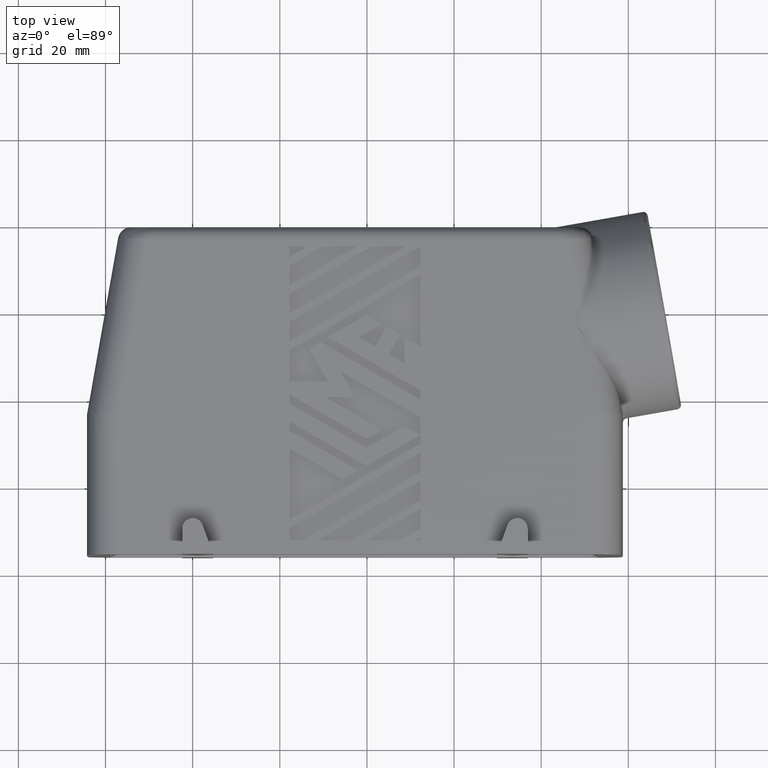
[diagram: clean part render]
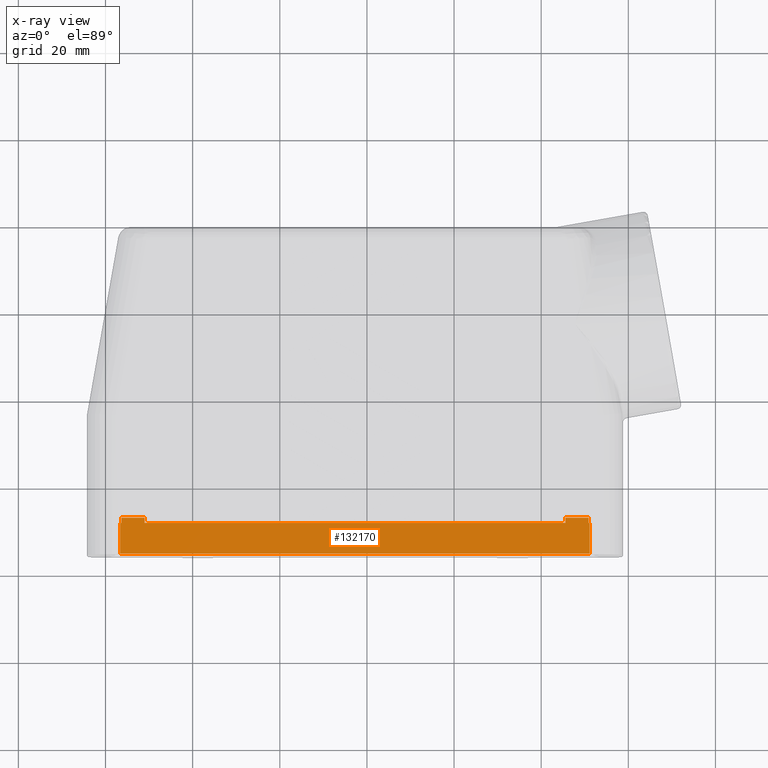
[diagram: x-ray — body ghosted, one internal face saturated and labeled with its STEP entity id]
A machine part, top view, then the same camera in x-ray: the body is ghosted and one INTERNAL B-rep face — a face not visible from any outside direction — is saturated and labeled: STEP entity #132170.
In plain terms, the highlighted planar face has unit normal (0, -0, -1).
Its self-contained STEP definition (entity closure, byte-faithful):
#1080=CARTESIAN_POINT('',(45.5534979824392,31.4003930000063,-17.2));
#1090=VERTEX_POINT('',#1080);
#1120=CARTESIAN_POINT('',(45.5534979824392,53.5003930000063,-17.2));
#1130=DIRECTION('',(6.12536841172502E-16,-1.,-2.87297397578668E-16));
#1140=VECTOR('',#1130,1.);
#1150=LINE('',#1120,#1140);
#1160=CARTESIAN_POINT('',(45.5534979824392,32.6003930000064,-17.2));
#1170=VERTEX_POINT('',#1160);
#1180=EDGE_CURVE('',#1170,#1090,#1150,.T.);
#7230=CARTESIAN_POINT('',(50.8534979824392,32.6003930000064,-17.2));
#7240=VERTEX_POINT('',#7230);
#7270=CARTESIAN_POINT('',(50.8534979824392,-13.5997084564518,-17.2));
#7280=DIRECTION('',(-3.06268420586251E-16,1.,2.87297397578668E-16));
#7290=VECTOR('',#7280,1.);
#7300=LINE('',#7270,#7290);
#7310=CARTESIAN_POINT('',(50.8534979824392,31.4003930000064,-17.2));
#7320=VERTEX_POINT('',#7310);
#7330=EDGE_CURVE('',#7320,#7240,#7300,.T.);
#46660=CARTESIAN_POINT('',(51.1534979824389,24.4003930000064,-17.2));
#46670=VERTEX_POINT('',#46660);
#46700=CARTESIAN_POINT('',(-129.746603478808,24.4003930000063,-17.2));
#46710=DIRECTION('',(-1.,0.,0.));
#46720=VECTOR('',#46710,1.);
#46730=LINE('',#46700,#46720);
#46740=CARTESIAN_POINT('',(-56.6465020175615,24.4003930000063,-17.2));
#46750=VERTEX_POINT('',#46740);
#46760=EDGE_CURVE('',#46670,#46750,#46730,.T.);
#82500=CARTESIAN_POINT('',(-51.0465020175618,31.4003930000063,-17.2));
#82510=VERTEX_POINT('',#82500);
#82540=CARTESIAN_POINT('',(-129.746603478808,31.4003930000063,-17.2));
#82550=DIRECTION('',(-1.,0.,0.));
#82560=VECTOR('',#82550,1.);
#82570=LINE('',#82540,#82560);
#82580=EDGE_CURVE('',#1090,#82510,#82570,.T.);
#100100=CARTESIAN_POINT('',(0.,32.6003930000064,-17.2));
#100110=DIRECTION('',(-1.,6.14770958871954E-45,1.86690458335834E-60));
#100120=VECTOR('',#100110,1.);
#100130=LINE('',#100100,#100120);
#100140=EDGE_CURVE('',#7240,#1170,#100130,.T.);
#102940=CARTESIAN_POINT('',(-56.6465020175615,31.4003930000062,-17.2));
#102950=VERTEX_POINT('',#102940);
#102980=CARTESIAN_POINT('',(-129.746603478808,31.4003930000062,-17.2));
#102990=DIRECTION('',(1.,9.10952225333462E-16,2.617142036568E-31));
#103000=VECTOR('',#102990,1.);
#103010=LINE('',#102980,#103000);
#103020=CARTESIAN_POINT('',(-56.3465020175618,31.4003930000063,-17.2));
#103030=VERTEX_POINT('',#103020);
#103040=EDGE_CURVE('',#102950,#103030,#103010,.T.);
#131620=CARTESIAN_POINT('',(57.2534979824382,31.4003930000063,-17.2));
#131630=DIRECTION('',(0.,-2.87297397578668E-16,1.));
#131640=DIRECTION('',(-1.,0.,0.));
#131650=AXIS2_PLACEMENT_3D('',#131620,#131630,#131640);
#131660=PLANE('',#131650);
#131670=ORIENTED_EDGE('',*,*,#46760,.T.);
#131680=CARTESIAN_POINT('',(51.1534979824389,-13.5997084564518,-17.2));
#131690=DIRECTION('',(2.9841538416096E-16,1.,2.87297397578668E-16));
#131700=VECTOR('',#131690,1.);
#131710=LINE('',#131680,#131700);
#131720=CARTESIAN_POINT('',(51.1534979824389,31.4003930000064,-17.2));
#131730=VERTEX_POINT('',#131720);
#131740=EDGE_CURVE('',#46670,#131730,#131710,.T.);
#131750=ORIENTED_EDGE('',*,*,#131740,.F.);
#131760=CARTESIAN_POINT('',(-129.746603478808,31.4003930000065,-17.2));
#131770=DIRECTION('',(-1.,2.9841538416096E-16,8.57339632668823E-32));
#131780=VECTOR('',#131770,1.);
#131790=LINE('',#131760,#131780);
#131800=EDGE_CURVE('',#131730,#7320,#131790,.T.);
#131810=ORIENTED_EDGE('',*,*,#131800,.F.);
#131820=ORIENTED_EDGE('',*,*,#7330,.F.);
#131830=ORIENTED_EDGE('',*,*,#100140,.F.);
#131840=ORIENTED_EDGE('',*,*,#1180,.F.);
#131850=ORIENTED_EDGE('',*,*,#82580,.F.);
#131860=CARTESIAN_POINT('',(-51.0465020175618,-13.5997084564518,-17.2));
#131870=DIRECTION('',(0.,1.,2.87297397578668E-16));
#131880=VECTOR('',#131870,1.);
#131890=LINE('',#131860,#131880);
#131900=CARTESIAN_POINT('',(-51.0465020175618,32.6003930000065,-17.2));
#131910=VERTEX_POINT('',#131900);
#131920=EDGE_CURVE('',#82510,#131910,#131890,.T.);
#131930=ORIENTED_EDGE('',*,*,#131920,.F.);
#131940=CARTESIAN_POINT('',(0.,32.6003930000065,-17.2));
#131950=DIRECTION('',(-1.,6.14770958871954E-45,1.86690458335834E-60));
#131960=VECTOR('',#131950,1.);
#131970=LINE('',#131940,#131960);
#131980=CARTESIAN_POINT('',(-56.3465020175618,32.6003930000065,-17.2));
#131990=VERTEX_POINT('',#131980);
#132000=EDGE_CURVE('',#131910,#131990,#131970,.T.);
#132010=ORIENTED_EDGE('',*,*,#132000,.F.);
#132020=CARTESIAN_POINT('',(-56.3465020175618,-13.5997084564518,-17.2));
#132030=DIRECTION('',(-3.06268420586251E-16,1.,2.87297397578668E-16));
#132040=VECTOR('',#132030,1.);
#132050=LINE('',#132020,#132040);
#132060=EDGE_CURVE('',#103030,#131990,#132050,.T.);
#132070=ORIENTED_EDGE('',*,*,#132060,.T.);
#132080=ORIENTED_EDGE('',*,*,#103040,.T.);
#132090=CARTESIAN_POINT('',(-56.6465020175615,-13.5997084564518,-17.2));
#132100=DIRECTION('',(9.10952225333462E-16,-1.,-2.87297397578668E-16));
#132110=VECTOR('',#132100,1.);
#132120=LINE('',#132090,#132110);
#132130=EDGE_CURVE('',#102950,#46750,#132120,.T.);
#132140=ORIENTED_EDGE('',*,*,#132130,.F.);
#132150=EDGE_LOOP('',(#132140,#132080,#132070,#132010,#131930,#131850,
#131840,#131830,#131820,#131810,#131750,#131670));
#132160=FACE_OUTER_BOUND('',#132150,.T.);
#132170=ADVANCED_FACE('',(#132160),#131660,.F.);